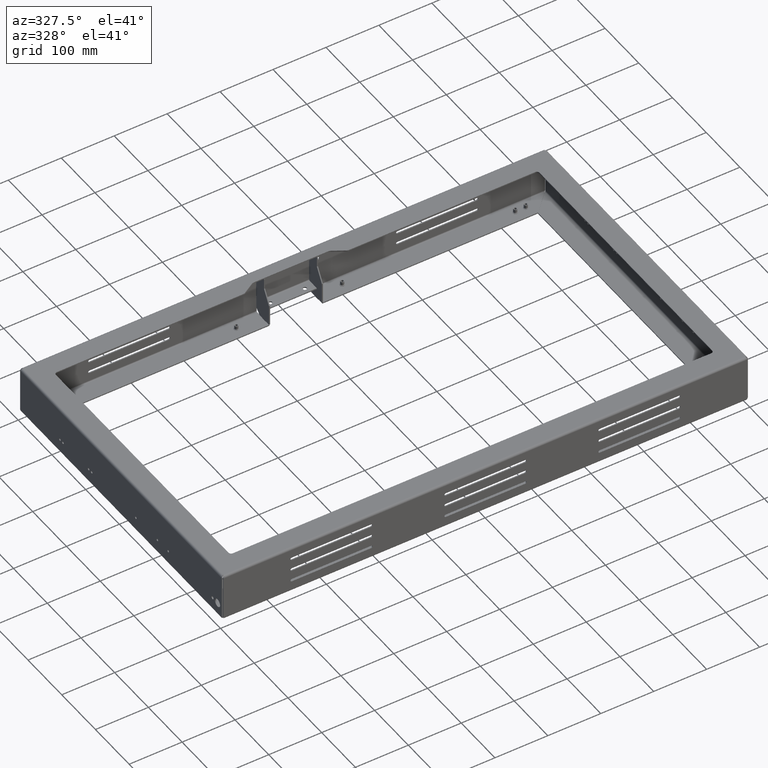
[diagram: clean part render]
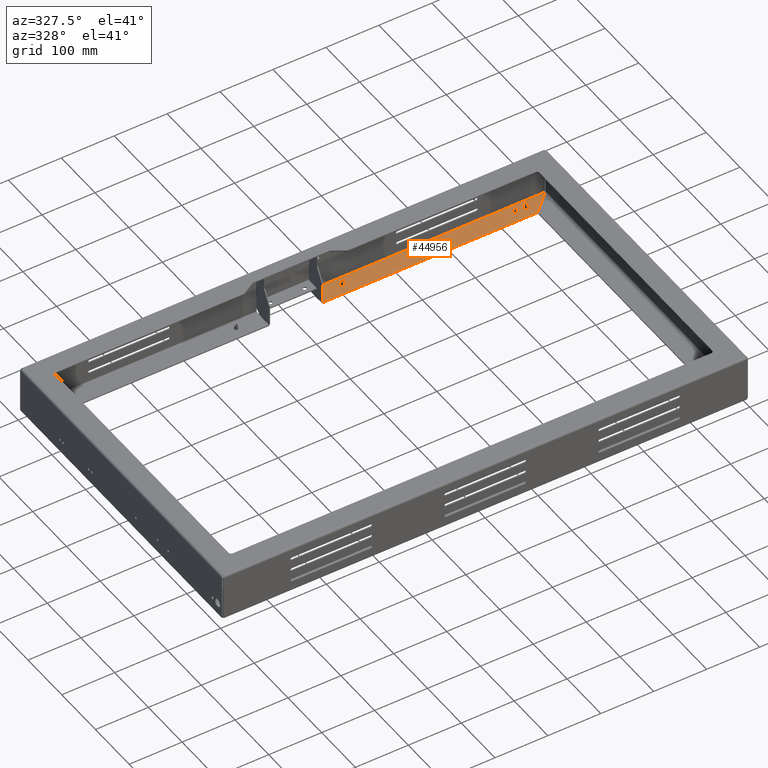
[diagram: same view with one face highlighted and labeled with its STEP entity id]
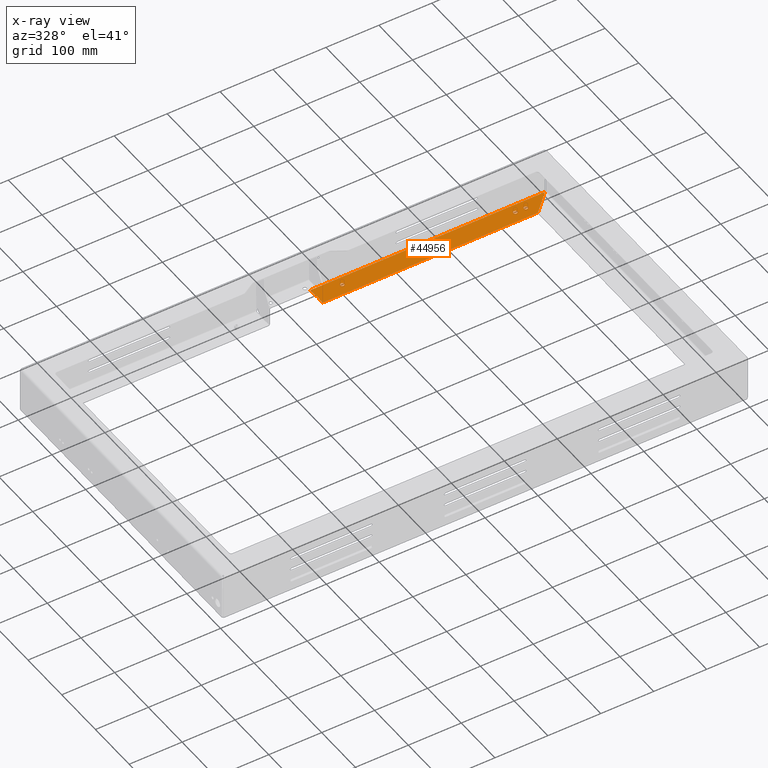
[diagram: x-ray of the same camera — body ghosted, the highlighted face saturated]
A machine part, auxiliary view. The second image highlights one B-rep face of the part: STEP entity #44956.
The next image is the same camera in x-ray: the body ghosted, the highlighted face saturated — about 0% of this face is hidden behind the body in this view.
In plain terms, the highlighted planar face has unit normal (0, -0, 1).
Its self-contained STEP definition (entity closure, byte-faithful):
#423 = LINE ( 'NONE', #34070, #36478 ) ;
#1796 = AXIS2_PLACEMENT_3D ( 'NONE', #38396, #29623, #25913 ) ;
#1831 = DIRECTION ( 'NONE',  ( 8.192259872435579800E-031, -7.304098846218139200E-015, 1.000000000000000000 ) ) ;
#1888 = VERTEX_POINT ( 'NONE', #33908 ) ;
#2550 = CARTESIAN_POINT ( 'NONE',  ( -2.927369784724066500E-014, 261.0000000000004000, -88.00000000000028400 ) ) ;
#2780 = VERTEX_POINT ( 'NONE', #20520 ) ;
#3125 = ORIENTED_EDGE ( 'NONE', *, *, #35530, .F. ) ;
#3544 = DIRECTION ( 'NONE',  ( 8.192259872435579800E-031, -7.304098846218139200E-015, 1.000000000000000000 ) ) ;
#3749 = VERTEX_POINT ( 'NONE', #13029 ) ;
#4223 = CIRCLE ( 'NONE', #1796, 3.500000000000003100 ) ;
#4423 = DIRECTION ( 'NONE',  ( -1.116924572057501200E-016, 1.000000000000000000, 7.304098846218139200E-015 ) ) ;
#4881 = EDGE_CURVE ( 'NONE', #15481, #8948, #16994, .T. ) ;
#5253 = PLANE ( 'NONE',  #28561 ) ;
#5479 = FACE_BOUND ( 'NONE', #14954, .T. ) ;
#5608 = EDGE_CURVE ( 'NONE', #12453, #26271, #26313, .T. ) ;
#6406 = ORIENTED_EDGE ( 'NONE', *, *, #44187, .F. ) ;
#6497 = DIRECTION ( 'NONE',  ( 8.192259872435579800E-031, -7.304098846218139200E-015, 1.000000000000000000 ) ) ;
#6676 = CARTESIAN_POINT ( 'NONE',  ( 50.00000000000003600, 281.5000000000004000, -88.00000000000002800 ) ) ;
#7701 = AXIS2_PLACEMENT_3D ( 'NONE', #22960, #43933, #19412 ) ;
#8082 = CIRCLE ( 'NONE', #7701, 3.500000000000003100 ) ;
#8448 = LINE ( 'NONE', #24178, #35242 ) ;
#8554 = EDGE_CURVE ( 'NONE', #8948, #15481, #45255, .T. ) ;
#8764 = DIRECTION ( 'NONE',  ( 0.0000000000000000000, -1.000000000000000000, -7.304098846218139200E-015 ) ) ;
#8948 = VERTEX_POINT ( 'NONE', #41094 ) ;
#9144 = ORIENTED_EDGE ( 'NONE', *, *, #39119, .T. ) ;
#10182 = CARTESIAN_POINT ( 'NONE',  ( 51.00000000000002800, 270.5000000000004000, -88.00000000000002800 ) ) ;
#10810 = EDGE_LOOP ( 'NONE', ( #40401, #26902 ) ) ;
#10993 = CIRCLE ( 'NONE', #35822, 3.500000000000003100 ) ;
#11307 = AXIS2_PLACEMENT_3D ( 'NONE', #41509, #6497, #31122 ) ;
#11360 = VECTOR ( 'NONE', #4423, 1000.000000000000000 ) ;
#12453 = VERTEX_POINT ( 'NONE', #19488 ) ;
#12473 = LINE ( 'NONE', #14929, #11360 ) ;
#13029 = CARTESIAN_POINT ( 'NONE',  ( 49.99999999999997200, 297.0000000000005100, -88.00000000000002800 ) ) ;
#13617 = LINE ( 'NONE', #36405, #40407 ) ;
#13680 = FACE_OUTER_BOUND ( 'NONE', #39363, .T. ) ;
#13872 = AXIS2_PLACEMENT_3D ( 'NONE', #22708, #1831, #26221 ) ;
#13914 = CARTESIAN_POINT ( 'NONE',  ( 447.0000000000005700, 281.0000000000002800, -88.00000000000012800 ) ) ;
#14049 = EDGE_CURVE ( 'NONE', #20215, #19153, #13617, .T. ) ;
#14779 = LINE ( 'NONE', #43019, #32297 ) ;
#14929 = CARTESIAN_POINT ( 'NONE',  ( 50.00000000000000000, 6.553838165793099100E-013, -88.00000000000218800 ) ) ;
#14954 = EDGE_LOOP ( 'NONE', ( #25955, #42457 ) ) ;
#15481 = VERTEX_POINT ( 'NONE', #31867 ) ;
#15619 = CARTESIAN_POINT ( 'NONE',  ( -7.288132282877868300E-029, 6.497991937190223900E-013, -88.00000000000218800 ) ) ;
#15759 = EDGE_CURVE ( 'NONE', #29422, #1888, #8082, .T. ) ;
#15954 = CARTESIAN_POINT ( 'NONE',  ( 49.99999999999997200, 261.0000000000004000, -88.00000000000028400 ) ) ;
#16994 = CIRCLE ( 'NONE', #13872, 3.500000000000003100 ) ;
#17410 = DIRECTION ( 'NONE',  ( 8.192259872435579800E-031, -7.304098846218139200E-015, 1.000000000000000000 ) ) ;
#17841 = EDGE_CURVE ( 'NONE', #3749, #19153, #8448, .T. ) ;
#19153 = VERTEX_POINT ( 'NONE', #44101 ) ;
#19258 = VECTOR ( 'NONE', #44280, 1000.000000000000000 ) ;
#19412 = DIRECTION ( 'NONE',  ( 0.0000000000000000000, -1.000000000000000000, -7.930164461608253300E-015 ) ) ;
#19488 = CARTESIAN_POINT ( 'NONE',  ( 51.00000000000002800, 270.5000000000004000, -88.00000000000021300 ) ) ;
#20215 = VERTEX_POINT ( 'NONE', #40485 ) ;
#20520 = CARTESIAN_POINT ( 'NONE',  ( 427.0000000000005700, 277.5000000000002800, -88.00000000000015600 ) ) ;
#21152 = CARTESIAN_POINT ( 'NONE',  ( 51.00000000000003600, 281.5000000000004000, -88.00000000000002800 ) ) ;
#21228 = ORIENTED_EDGE ( 'NONE', *, *, #26422, .F. ) ;
#22018 = EDGE_CURVE ( 'NONE', #1888, #29422, #4223, .T. ) ;
#22565 = CARTESIAN_POINT ( 'NONE',  ( 427.0000000000005700, 284.5000000000002800, -88.00000000000009900 ) ) ;
#22708 = CARTESIAN_POINT ( 'NONE',  ( 447.0000000000005700, 281.0000000000002800, -88.00000000000012800 ) ) ;
#22960 = CARTESIAN_POINT ( 'NONE',  ( 99.99999999999994300, 281.0000000000003400, -88.00000000000012800 ) ) ;
#23704 = VERTEX_POINT ( 'NONE', #15954 ) ;
#24178 = CARTESIAN_POINT ( 'NONE',  ( -494.9292893218816400, 297.0000000000003400, -88.00000000000002800 ) ) ;
#24410 = CARTESIAN_POINT ( 'NONE',  ( 427.0000000000005700, 281.0000000000002800, -88.00000000000012800 ) ) ;
#24849 = DIRECTION ( 'NONE',  ( -1.116924572057501200E-016, 1.000000000000000000, 7.304098846218139200E-015 ) ) ;
#25507 = ORIENTED_EDGE ( 'NONE', *, *, #35280, .T. ) ;
#25913 = DIRECTION ( 'NONE',  ( 0.0000000000000000000, -1.000000000000000000, -7.930164461608253300E-015 ) ) ;
#25955 = ORIENTED_EDGE ( 'NONE', *, *, #8554, .F. ) ;
#26221 = DIRECTION ( 'NONE',  ( 0.0000000000000000000, -1.000000000000000000, -7.930164461608253300E-015 ) ) ;
#26271 = VERTEX_POINT ( 'NONE', #21152 ) ;
#26313 = LINE ( 'NONE', #10182, #35620 ) ;
#26422 = EDGE_CURVE ( 'NONE', #37155, #3749, #14779, .T. ) ;
#26616 = VECTOR ( 'NONE', #27127, 1000.000000000000000 ) ;
#26902 = ORIENTED_EDGE ( 'NONE', *, *, #15759, .F. ) ;
#27127 = DIRECTION ( 'NONE',  ( -1.000000000000000000, 1.116924572057501200E-016, 3.100088441669593800E-031 ) ) ;
#27587 = CARTESIAN_POINT ( 'NONE',  ( 50.00000000000002800, 270.5000000000004000, -88.00000000000002800 ) ) ;
#27968 = DIRECTION ( 'NONE',  ( 0.0000000000000000000, -1.000000000000000000, -7.930164461608253300E-015 ) ) ;
#28062 = EDGE_CURVE ( 'NONE', #2780, #35921, #33628, .T. ) ;
#28561 = AXIS2_PLACEMENT_3D ( 'NONE', #15619, #29729, #8764 ) ;
#29422 = VERTEX_POINT ( 'NONE', #39637 ) ;
#29580 = DIRECTION ( 'NONE',  ( 0.7071067811865502400, 0.7071067811865449100, 5.164777824617663500E-015 ) ) ;
#29623 = DIRECTION ( 'NONE',  ( 8.192259872435579800E-031, -7.304098846218139200E-015, 1.000000000000000000 ) ) ;
#29729 = DIRECTION ( 'NONE',  ( 8.192259872435579800E-031, -7.304098846218139200E-015, 1.000000000000000000 ) ) ;
#29816 = AXIS2_PLACEMENT_3D ( 'NONE', #13914, #17410, #38347 ) ;
#30681 = ORIENTED_EDGE ( 'NONE', *, *, #28062, .F. ) ;
#31122 = DIRECTION ( 'NONE',  ( 0.0000000000000000000, -1.000000000000000000, -7.930164461608253300E-015 ) ) ;
#31143 = DIRECTION ( 'NONE',  ( 6.308085367188384300E-016, 1.000000000000000000, 0.0000000000000000000 ) ) ;
#31867 = CARTESIAN_POINT ( 'NONE',  ( 447.0000000000005700, 277.5000000000002800, -88.00000000000015600 ) ) ;
#32288 = FACE_BOUND ( 'NONE', #45154, .T. ) ;
#32297 = VECTOR ( 'NONE', #24849, 1000.000000000000000 ) ;
#33628 = CIRCLE ( 'NONE', #11307, 3.500000000000003100 ) ;
#33908 = CARTESIAN_POINT ( 'NONE',  ( 99.99999999999994300, 284.5000000000003400, -88.00000000000009900 ) ) ;
#34070 = CARTESIAN_POINT ( 'NONE',  ( 51.00000000000003600, 281.5000000000004000, -88.00000000000002800 ) ) ;
#35007 = EDGE_CURVE ( 'NONE', #26271, #37155, #423, .T. ) ;
#35242 = VECTOR ( 'NONE', #41460, 1000.000000000000000 ) ;
#35280 = EDGE_CURVE ( 'NONE', #12453, #44648, #35912, .T. ) ;
#35530 = EDGE_CURVE ( 'NONE', #23704, #44648, #12473, .T. ) ;
#35620 = VECTOR ( 'NONE', #31143, 1000.000000000000000 ) ;
#35822 = AXIS2_PLACEMENT_3D ( 'NONE', #24410, #3544, #27968 ) ;
#35912 = LINE ( 'NONE', #45343, #26616 ) ;
#35921 = VERTEX_POINT ( 'NONE', #22565 ) ;
#36405 = CARTESIAN_POINT ( 'NONE',  ( 97.96464466093900100, -97.96464466093908600, -88.00000000000291300 ) ) ;
#36478 = VECTOR ( 'NONE', #41090, 1000.000000000000000 ) ;
#37155 = VERTEX_POINT ( 'NONE', #6676 ) ;
#37845 = LINE ( 'NONE', #2550, #19258 ) ;
#38132 = ORIENTED_EDGE ( 'NONE', *, *, #17841, .F. ) ;
#38347 = DIRECTION ( 'NONE',  ( 0.0000000000000000000, -1.000000000000000000, -7.930164461608253300E-015 ) ) ;
#38396 = CARTESIAN_POINT ( 'NONE',  ( 99.99999999999994300, 281.0000000000003400, -88.00000000000012800 ) ) ;
#39040 = ORIENTED_EDGE ( 'NONE', *, *, #14049, .T. ) ;
#39119 = EDGE_CURVE ( 'NONE', #23704, #20215, #37845, .T. ) ;
#39363 = EDGE_LOOP ( 'NONE', ( #44881, #25507, #3125, #9144, #39040, #38132, #21228, #39725 ) ) ;
#39637 = CARTESIAN_POINT ( 'NONE',  ( 99.99999999999994300, 277.5000000000003400, -88.00000000000015600 ) ) ;
#39725 = ORIENTED_EDGE ( 'NONE', *, *, #35007, .F. ) ;
#40401 = ORIENTED_EDGE ( 'NONE', *, *, #22018, .F. ) ;
#40407 = VECTOR ( 'NONE', #29580, 1000.000000000000100 ) ;
#40485 = CARTESIAN_POINT ( 'NONE',  ( 456.9292893218813600, 261.0000000000004500, -88.00000000000028400 ) ) ;
#41090 = DIRECTION ( 'NONE',  ( -1.000000000000000000, 1.116924572057501200E-016, 3.100088441669593800E-031 ) ) ;
#41094 = CARTESIAN_POINT ( 'NONE',  ( 447.0000000000005700, 284.5000000000002800, -88.00000000000009900 ) ) ;
#41460 = DIRECTION ( 'NONE',  ( 1.000000000000000000, 1.682396428002334500E-016, 4.096129936217790800E-031 ) ) ;
#41509 = CARTESIAN_POINT ( 'NONE',  ( 427.0000000000005700, 281.0000000000002800, -88.00000000000012800 ) ) ;
#42457 = ORIENTED_EDGE ( 'NONE', *, *, #4881, .F. ) ;
#43019 = CARTESIAN_POINT ( 'NONE',  ( 50.00000000000000000, 6.553838165793099100E-013, -88.00000000000218800 ) ) ;
#43801 = FACE_BOUND ( 'NONE', #10810, .T. ) ;
#43933 = DIRECTION ( 'NONE',  ( 8.192259872435579800E-031, -7.304098846218139200E-015, 1.000000000000000000 ) ) ;
#44101 = CARTESIAN_POINT ( 'NONE',  ( 492.9292893218816400, 297.0000000000004500, -88.00000000000002800 ) ) ;
#44187 = EDGE_CURVE ( 'NONE', #35921, #2780, #10993, .T. ) ;
#44280 = DIRECTION ( 'NONE',  ( 1.000000000000000000, 1.121597618668223000E-016, 0.0000000000000000000 ) ) ;
#44648 = VERTEX_POINT ( 'NONE', #27587 ) ;
#44881 = ORIENTED_EDGE ( 'NONE', *, *, #5608, .F. ) ;
#44956 = ADVANCED_FACE ( 'NONE', ( #32288, #5479, #43801, #13680 ), #5253, .T. ) ;
#45154 = EDGE_LOOP ( 'NONE', ( #6406, #30681 ) ) ;
#45255 = CIRCLE ( 'NONE', #29816, 3.500000000000003100 ) ;
#45343 = CARTESIAN_POINT ( 'NONE',  ( 51.00000000000002800, 270.5000000000004000, -88.00000000000002800 ) ) ;